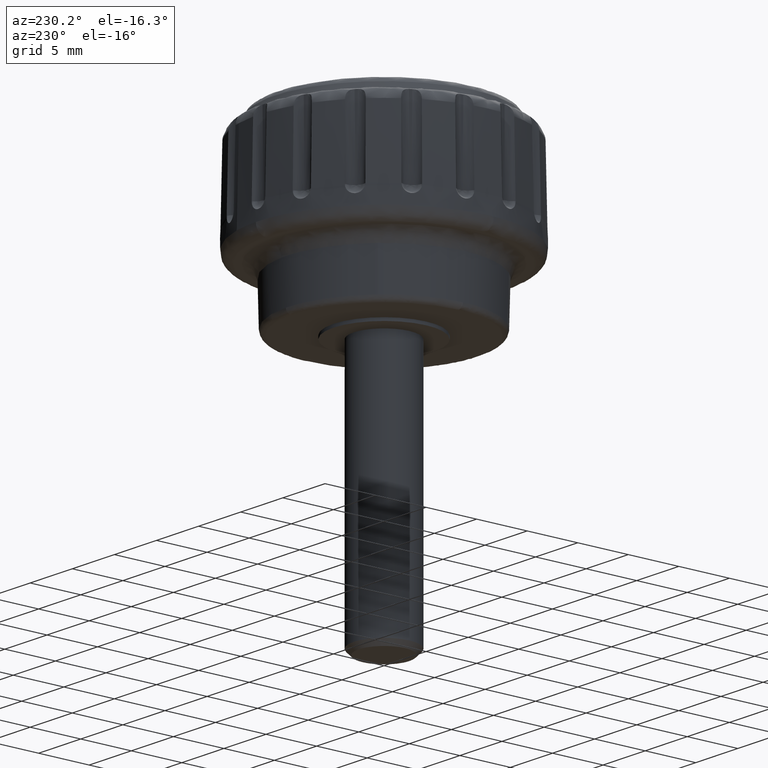
[diagram: clean part render]
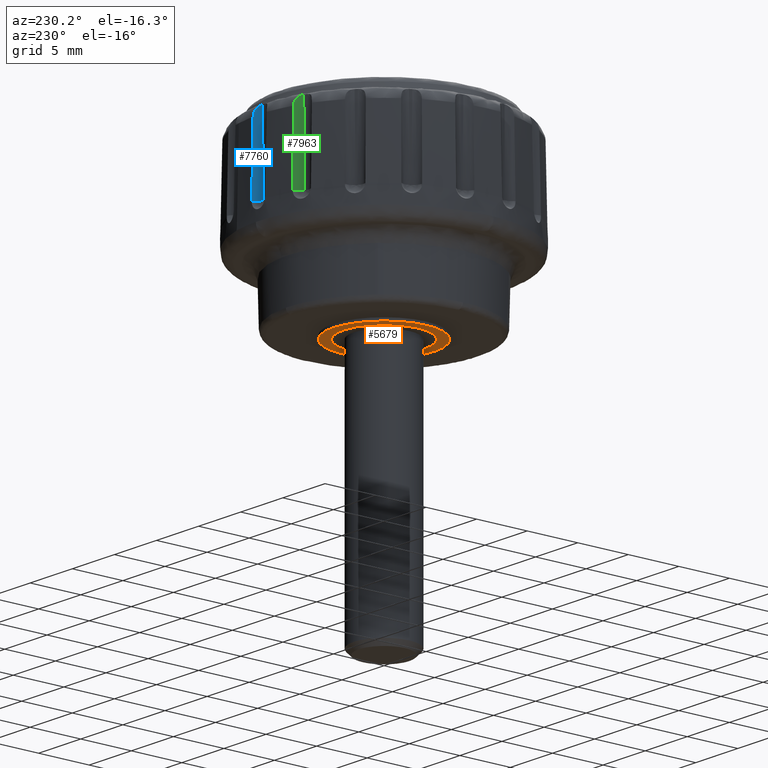
[diagram: same view with three faces highlighted in distinct colors, each labeled with its STEP entity id]
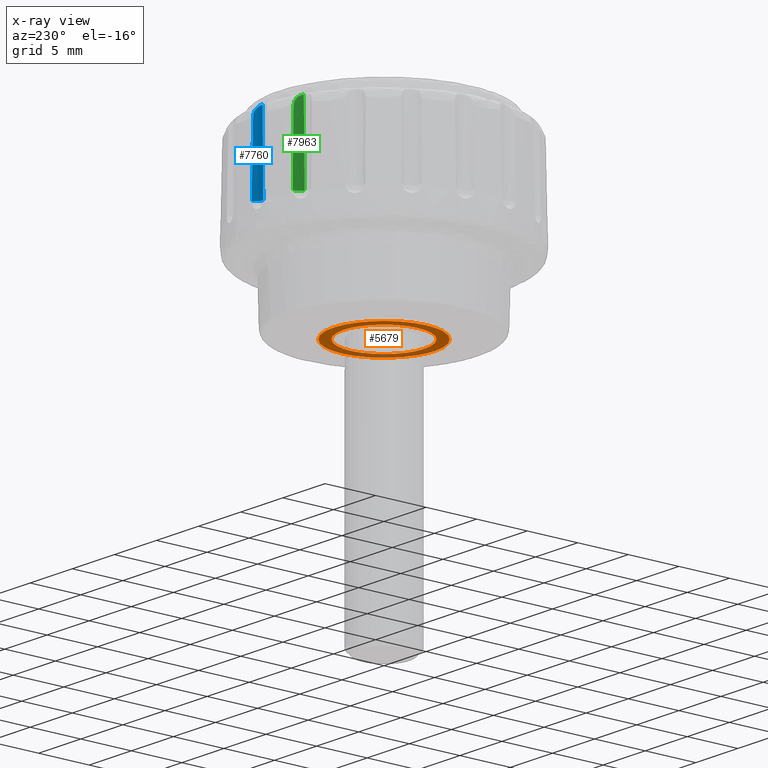
[diagram: x-ray of the same camera — body ghosted, the three highlighted faces saturated]
A machine part, auxiliary view with three faces highlighted in distinct colors.
The next image is the same camera in x-ray (body ghosted, the three faces saturated) — at least one of them is partly hidden behind the body in this view.
Their STEP definitions:

[orange] entity #5679 — the highlighted face is a freeform B-spline surface patch.
#773=CARTESIAN_POINT('',(2.582968277259651,3.054222686673260,1.419714E-017));
#774=VERTEX_POINT('',#773);
#780=CARTESIAN_POINT('',(4.0,0.0,0.0));
#781=VERTEX_POINT('',#780);
#782=CARTESIAN_POINT('',(2.582968277259651,3.054222686673260,1.419714E-017));
#783=CARTESIAN_POINT('',(2.783390729708871,2.884774332872317,1.340948E-017));
#784=CARTESIAN_POINT('',(3.099994334811781,2.558418817075851,1.189246E-017));
#785=CARTESIAN_POINT('',(3.479491614672023,2.004554865611670,9.317902E-018));
#786=CARTESIAN_POINT('',(3.731193763909722,1.480769749863850,6.883158E-018));
#787=CARTESIAN_POINT('',(3.941633084193859,0.805421673526824,3.743894E-018));
#788=CARTESIAN_POINT('',(4.000071593187973,0.316758942478009,1.472411E-018));
#789=CARTESIAN_POINT('',(4.0,0.0,0.0));
#790=B_SPLINE_CURVE_WITH_KNOTS('',3,(#782,#783,#784,#785,#786,#787,#788,#789),.UNSPECIFIED.,.F.,.U.,(4,1,1,1,1,4),(9.010364E-009,0.787352829345669,1.357509023448927,2.009103886044130,2.524959432130479,3.475213214580102),.UNSPECIFIED.);
#791=EDGE_CURVE('',#774,#781,#790,.T.);
#793=CARTESIAN_POINT('',(-0.000000679998158,-3.999999999999942,0.0));
#794=VERTEX_POINT('',#793);
#795=CARTESIAN_POINT('',(4.0,0.0,0.0));
#796=CARTESIAN_POINT('',(4.000134522528324,-0.359991037661738,0.0));
#797=CARTESIAN_POINT('',(3.933279082925195,-0.850794235132467,0.0));
#798=CARTESIAN_POINT('',(3.722551921038738,-1.488560877013301,0.0));
#799=CARTESIAN_POINT('',(3.494185485100092,-1.979216667947325,0.0));
#800=CARTESIAN_POINT('',(3.156598248613758,-2.484457838083012,0.0));
#801=CARTESIAN_POINT('',(2.754590853296578,-2.917183679142960,0.0));
#802=CARTESIAN_POINT('',(2.323740891626389,-3.270775001430089,0.0));
#803=CARTESIAN_POINT('',(1.820894925464643,-3.580640400324473,0.0));
#804=CARTESIAN_POINT('',(1.320188478140101,-3.788031428481791,0.0));
#805=CARTESIAN_POINT('',(0.703560905088214,-3.954606692610321,0.0));
#806=CARTESIAN_POINT('',(0.294528781102470,-4.000058164742479,0.0));
#807=CARTESIAN_POINT('',(-0.000000679998158,-3.999999999999942,0.0));
#808=B_SPLINE_CURVE_WITH_KNOTS('',3,(#795,#796,#797,#798,#799,#800,#801,#802,#803,#804,#805,#806,#807),.UNSPECIFIED.,.F.,.U.,(4,1,1,1,1,1,1,1,1,1,4),(7.866772E-009,1.079924879781738,1.472630004351729,2.012600383249791,2.699835945943578,3.288867183465816,3.779748287333567,4.368803776428929,5.056035109088246,5.399652359583630,6.283225114761176),.UNSPECIFIED.);
#809=EDGE_CURVE('',#781,#794,#808,.T.);
#811=CARTESIAN_POINT('',(-4.0,0.0,0.0));
#812=VERTEX_POINT('',#811);
#813=CARTESIAN_POINT('',(-0.000000679998158,-3.999999999999942,0.0));
#814=CARTESIAN_POINT('',(-0.196347172379414,-4.000001452462540,0.0));
#815=CARTESIAN_POINT('',(-0.687229420923167,-3.963824777952946,0.0));
#816=CARTESIAN_POINT('',(-1.467262980971816,-3.758283282391179,0.0));
#817=CARTESIAN_POINT('',(-2.181486672030715,-3.382104926165908,0.0));
#818=CARTESIAN_POINT('',(-2.732257714547681,-2.941223204485406,0.0));
#819=CARTESIAN_POINT('',(-3.156598305106874,-2.484454473597618,0.0));
#820=CARTESIAN_POINT('',(-3.466809462243532,-2.020181202659668,0.0));
#821=CARTESIAN_POINT('',(-3.711111756726393,-1.519615140229277,0.0));
#822=CARTESIAN_POINT('',(-3.929966888354716,-0.883526173425500,0.0));
#823=CARTESIAN_POINT('',(-4.000113739059817,-0.343624344631136,0.0));
#824=CARTESIAN_POINT('',(-4.0,0.0,0.0));
#825=B_SPLINE_CURVE_WITH_KNOTS('',3,(#813,#814,#815,#816,#817,#818,#819,#820,#821,#822,#823,#824),.UNSPECIFIED.,.F.,.U.,(4,1,1,1,1,1,1,1,1,4),(8.102653E-009,0.589048594108083,1.472629824898043,2.405297474261140,2.994358022042039,3.583389572379555,4.270625342967807,4.663330551732337,5.252384974597203,6.283224348239977),.UNSPECIFIED.);
#826=EDGE_CURVE('',#794,#812,#825,.T.);
#828=CARTESIAN_POINT('',(-2.901497342908391,2.753418204879737,5.828671E-016));
#829=VERTEX_POINT('',#828);
#830=CARTESIAN_POINT('',(-4.0,0.0,0.0));
#831=CARTESIAN_POINT('',(-4.000027204107603,0.268888737916587,5.692067E-017));
#832=CARTESIAN_POINT('',(-3.940809217232864,0.854123793103191,1.808082E-016));
#833=CARTESIAN_POINT('',(-3.705122333279410,1.564683932316091,3.312257E-016));
#834=CARTESIAN_POINT('',(-3.349177438496826,2.218837151845350,4.697024E-016));
#835=CARTESIAN_POINT('',(-3.086622767592415,2.558398637567795,5.415837E-016));
#836=CARTESIAN_POINT('',(-2.901497342908391,2.753418204879737,5.828671E-016));
#837=B_SPLINE_CURVE_WITH_KNOTS('',3,(#830,#831,#832,#833,#834,#835,#836),.UNSPECIFIED.,.F.,.U.,(4,1,1,1,4),(4.966496E-009,0.806674616060234,1.755696855169247,2.230216055049120,3.036890666136536),.UNSPECIFIED.);
#838=EDGE_CURVE('',#812,#829,#837,.T.);
#933=CARTESIAN_POINT('',(0.000000679998100,3.999999999999942,0.0));
#934=VERTEX_POINT('',#933);
#935=CARTESIAN_POINT('',(-2.901497342908391,2.753418204879737,5.828671E-016));
#936=CARTESIAN_POINT('',(-2.633910586593972,3.035621959927008,5.291130E-016));
#937=CARTESIAN_POINT('',(-2.109638003403320,3.447038695474149,4.237945E-016));
#938=CARTESIAN_POINT('',(-1.364236921564165,3.778477828234029,2.740547E-016));
#939=CARTESIAN_POINT('',(-0.693207450426515,3.956940239242774,1.392550E-016));
#940=CARTESIAN_POINT('',(-0.270529514455845,4.000042276784148,5.434543E-017));
#941=CARTESIAN_POINT('',(0.000000679998100,3.999999999999942,0.0));
#942=B_SPLINE_CURVE_WITH_KNOTS('',3,(#935,#936,#937,#938,#939,#940,#941),.UNSPECIFIED.,.F.,.U.,(4,1,1,1,4),(3.094430E-009,1.166654518162611,1.978232035870866,2.434751058514233,3.246334743390905),.UNSPECIFIED.);
#943=EDGE_CURVE('',#829,#934,#942,.T.);
#945=CARTESIAN_POINT('',(0.000000679998100,3.999999999999942,0.0));
#946=CARTESIAN_POINT('',(0.336383856765105,4.000090462627290,1.848912E-018));
#947=CARTESIAN_POINT('',(0.877454327103137,3.931325600871909,4.822876E-018));
#948=CARTESIAN_POINT('',(1.529857339520434,3.708508978252101,8.408774E-018));
#949=CARTESIAN_POINT('',(2.067774777102714,3.441538958272474,1.136541E-017));
#950=CARTESIAN_POINT('',(2.393146461177585,3.214792512317925,1.315380E-017));
#951=CARTESIAN_POINT('',(2.582968277259651,3.054222686673260,1.419714E-017));
#952=B_SPLINE_CURVE_WITH_KNOTS('',3,(#945,#946,#947,#948,#949,#950,#951),.UNSPECIFIED.,.F.,.U.,(4,1,1,1,4),(5.486857E-009,1.009125320555869,1.623366984815520,2.062118867608787,2.807992290856201),.UNSPECIFIED.);
#953=EDGE_CURVE('',#934,#774,#952,.T.);
#1754=CARTESIAN_POINT('',(3.626871746580310,-3.441772775521897,-4.770490E-017));
#1755=VERTEX_POINT('',#1754);
#1761=CARTESIAN_POINT('',(5.0,0.0,0.0));
#1762=VERTEX_POINT('',#1761);
#1763=CARTESIAN_POINT('',(5.0,0.0,0.0));
#1764=CARTESIAN_POINT('',(5.000050501878227,-0.336116466605772,-4.658762E-018));
#1765=CARTESIAN_POINT('',(4.941954089192699,-0.909463459414174,-1.260567E-017));
#1766=CARTESIAN_POINT('',(4.733635112887720,-1.653901941810429,-2.292401E-017));
#1767=CARTESIAN_POINT('',(4.453792906141968,-2.309715544774081,-3.201395E-017));
#1768=CARTESIAN_POINT('',(4.093401905128494,-2.903249659808498,-4.024066E-017));
#1769=CARTESIAN_POINT('',(3.776581342135038,-3.284018968280497,-4.551834E-017));
#1770=CARTESIAN_POINT('',(3.626871746580310,-3.441772775521897,-4.770490E-017));
#1771=B_SPLINE_CURVE_WITH_KNOTS('',3,(#1763,#1764,#1765,#1766,#1767,#1768,#1769,#1770),.UNSPECIFIED.,.F.,.U.,(4,1,1,1,1,4),(1.769189E-009,1.008342609191173,1.720114205888494,2.313256215210973,3.143656487049242,3.796113323772782),.UNSPECIFIED.);
#1772=EDGE_CURVE('',#1762,#1755,#1771,.T.);
#1774=CARTESIAN_POINT('',(0.000000599034348,4.999999999999965,0.0));
#1775=VERTEX_POINT('',#1774);
#1776=CARTESIAN_POINT('',(0.000000599034348,4.999999999999965,0.0));
#1777=CARTESIAN_POINT('',(0.357933616104426,5.000060118899714,0.0));
#1778=CARTESIAN_POINT('',(0.951046597887481,4.936028082981140,0.0));
#1779=CARTESIAN_POINT('',(1.698695233837761,4.716699810084221,0.0));
#1780=CARTESIAN_POINT('',(2.318358195801800,4.446564962325157,0.0));
#1781=CARTESIAN_POINT('',(2.941833340380854,4.070292030761775,0.0));
#1782=CARTESIAN_POINT('',(3.488742831429088,3.604323493252253,0.0));
#1783=CARTESIAN_POINT('',(3.978848434695347,3.053479504462322,0.0));
#1784=CARTESIAN_POINT('',(4.339663741693673,2.517049276136158,0.0));
#1785=CARTESIAN_POINT('',(4.674539691422725,1.825565052465497,0.0));
#1786=CARTESIAN_POINT('',(4.929414415760291,1.012404279034509,0.0));
#1787=CARTESIAN_POINT('',(5.000060743668165,0.357932501627800,0.0));
#1788=CARTESIAN_POINT('',(5.0,0.0,0.0));
#1789=B_SPLINE_CURVE_WITH_KNOTS('',3,(#1776,#1777,#1778,#1779,#1780,#1781,#1782,#1783,#1784,#1785,#1786,#1787,#1788),.UNSPECIFIED.,.F.,.U.,(4,1,1,1,1,1,1,1,1,1,4),(0.000000026688253,1.073785785966996,1.779419607358167,2.331655071204996,3.098650277464014,3.957660029181113,4.479218508483781,5.307577037523638,5.890495218682290,6.780210582299306,7.853993616966953),.UNSPECIFIED.);
#1790=EDGE_CURVE('',#1775,#1762,#1789,.T.);
#1792=CARTESIAN_POINT('',(-5.0,0.0,0.0));
#1793=VERTEX_POINT('',#1792);
#1794=CARTESIAN_POINT('',(-5.0,0.0,0.0));
#1795=CARTESIAN_POINT('',(-5.000100231271516,0.398842465195034,0.0));
#1796=CARTESIAN_POINT('',(-4.916330945191805,1.094202930271203,0.0));
#1797=CARTESIAN_POINT('',(-4.634950910936357,1.920297064769165,0.0));
#1798=CARTESIAN_POINT('',(-4.306045600345787,2.568733771881766,0.0));
#1799=CARTESIAN_POINT('',(-3.971008113844284,3.060299229375719,0.0));
#1800=CARTESIAN_POINT('',(-3.523365090268375,3.566536108629140,0.0));
#1801=CARTESIAN_POINT('',(-2.984075074527847,4.040488785777233,0.0));
#1802=CARTESIAN_POINT('',(-2.277401400887092,4.478935329388031,0.0));
#1803=CARTESIAN_POINT('',(-1.573186509137595,4.763038204966443,0.0));
#1804=CARTESIAN_POINT('',(-0.818106295358557,4.952170153458454,0.0));
#1805=CARTESIAN_POINT('',(-0.317024084356063,5.000041255077769,0.0));
#1806=CARTESIAN_POINT('',(0.000000599034348,4.999999999999965,0.0));
#1807=B_SPLINE_CURVE_WITH_KNOTS('',3,(#1794,#1795,#1796,#1797,#1798,#1799,#1800,#1801,#1802,#1803,#1804,#1805,#1806),.UNSPECIFIED.,.F.,.U.,(4,1,1,1,1,1,1,1,1,1,4),(0.000000026639937,1.196503717085729,2.086217465142714,2.607776903351938,3.374775518609680,3.865641439352543,4.632628442492885,5.522338321696408,6.350694559411954,6.902929232274560,7.853994292219328),.UNSPECIFIED.);
#1808=EDGE_CURVE('',#1793,#1775,#1807,.T.);
#1810=CARTESIAN_POINT('',(-3.228710282003084,-3.817778331921210,-3.016892E-017));
#1811=VERTEX_POINT('',#1810);
#1812=CARTESIAN_POINT('',(-3.228710282003084,-3.817778331921210,-3.016892E-017));
#1813=CARTESIAN_POINT('',(-3.487875086621408,-3.598661010389491,-2.843741E-017));
#1814=CARTESIAN_POINT('',(-3.850817943079441,-3.221996685965381,-2.546093E-017));
#1815=CARTESIAN_POINT('',(-4.279680637041627,-2.609482934388073,-2.062071E-017));
#1816=CARTESIAN_POINT('',(-4.636416288865320,-1.938752579579847,-1.532045E-017));
#1817=CARTESIAN_POINT('',(-4.925902351794397,-1.052048912451596,-8.313522E-018));
#1818=CARTESIAN_POINT('',(-5.000058587354344,-0.350692530942006,-2.771250E-018));
#1819=CARTESIAN_POINT('',(-5.0,0.0,0.0));
#1820=B_SPLINE_CURVE_WITH_KNOTS('',3,(#1812,#1813,#1814,#1815,#1816,#1817,#1818,#1819),.UNSPECIFIED.,.F.,.U.,(4,1,1,1,1,4),(8.790930E-009,1.018128545418596,1.561135051953893,2.239878803243487,3.291950149347940,4.344016523591941),.UNSPECIFIED.);
#1821=EDGE_CURVE('',#1811,#1793,#1820,.T.);
#1858=CARTESIAN_POINT('',(-0.000000599034464,-4.999999999999965,0.0));
#1859=VERTEX_POINT('',#1858);
#1860=CARTESIAN_POINT('',(-0.000000599034464,-4.999999999999965,0.0));
#1861=CARTESIAN_POINT('',(-0.237655124339219,-5.000009584581895,-2.220634E-018));
#1862=CARTESIAN_POINT('',(-0.731244484363819,-4.964747741952481,-6.832711E-018));
#1863=CARTESIAN_POINT('',(-1.429168163173637,-4.809135219069916,-1.335408E-017));
#1864=CARTESIAN_POINT('',(-2.303016913953041,-4.478312403649905,-2.151929E-017));
#1865=CARTESIAN_POINT('',(-2.879828865944173,-4.113035741219294,-2.690899E-017));
#1866=CARTESIAN_POINT('',(-3.228710282003084,-3.817778331921210,-3.016892E-017));
#1867=B_SPLINE_CURVE_WITH_KNOTS('',3,(#1860,#1861,#1862,#1863,#1864,#1865,#1866),.UNSPECIFIED.,.F.,.U.,(4,1,1,1,4),(3.036485E-009,0.712966008545636,1.480781654037774,2.138896337693041,3.509990560577175),.UNSPECIFIED.);
#1868=EDGE_CURVE('',#1859,#1811,#1867,.T.);
#1870=CARTESIAN_POINT('',(3.626871746580310,-3.441772775521897,-4.770490E-017));
#1871=CARTESIAN_POINT('',(3.343253345253232,-3.740806806772956,-4.397441E-017));
#1872=CARTESIAN_POINT('',(2.750840413624729,-4.227463248078142,-3.618230E-017));
#1873=CARTESIAN_POINT('',(1.855735613630587,-4.670585781485934,-2.440883E-017));
#1874=CARTESIAN_POINT('',(0.951043141470591,-4.935915016060008,-1.250925E-017));
#1875=CARTESIAN_POINT('',(0.359298332916841,-5.000067257361243,-4.725923E-018));
#1876=CARTESIAN_POINT('',(-0.000000599034464,-4.999999999999965,0.0));
#1877=B_SPLINE_CURVE_WITH_KNOTS('',3,(#1870,#1871,#1872,#1873,#1874,#1875,#1876),.UNSPECIFIED.,.F.,.U.,(4,1,1,1,4),(7.544592E-009,1.236392350986767,2.282562276801998,2.980018569408485,4.057897846333485),.UNSPECIFIED.);
#1878=EDGE_CURVE('',#1755,#1859,#1877,.T.);
#5658=CARTESIAN_POINT('',(5.499499980618060,-5.499499980618021,0.0));
#5659=CARTESIAN_POINT('',(-5.499500248838961,-5.499499980618021,0.0));
#5660=CARTESIAN_POINT('',(5.499499980618060,5.499500248838922,0.0));
#5661=CARTESIAN_POINT('',(-5.499500248838961,5.499500248838922,0.0));
#5662=B_SPLINE_SURFACE_WITH_KNOTS('',1,1,((#5658,#5660),(#5659,#5661)),.UNSPECIFIED.,.F.,.F.,.U.,(2,2),(2,2),(0.0,10.999000229457019),(0.0,10.999000229456939),.UNSPECIFIED.);
#5663=ORIENTED_EDGE('',*,*,#1808,.T.);
#5664=ORIENTED_EDGE('',*,*,#1790,.T.);
#5665=ORIENTED_EDGE('',*,*,#1772,.T.);
#5666=ORIENTED_EDGE('',*,*,#1878,.T.);
#5667=ORIENTED_EDGE('',*,*,#1868,.T.);
#5668=ORIENTED_EDGE('',*,*,#1821,.T.);
#5669=EDGE_LOOP('',(#5663,#5664,#5665,#5666,#5667,#5668));
#5670=FACE_OUTER_BOUND('',#5669,.T.);
#5671=ORIENTED_EDGE('',*,*,#809,.F.);
#5672=ORIENTED_EDGE('',*,*,#791,.F.);
#5673=ORIENTED_EDGE('',*,*,#953,.F.);
#5674=ORIENTED_EDGE('',*,*,#943,.F.);
#5675=ORIENTED_EDGE('',*,*,#838,.F.);
#5676=ORIENTED_EDGE('',*,*,#826,.F.);
#5677=EDGE_LOOP('',(#5671,#5672,#5673,#5674,#5675,#5676));
#5678=FACE_BOUND('',#5677,.T.);
#5679=ADVANCED_FACE('',(#5670,#5678),#5662,.T.);

[blue] entity #7760 — the highlighted face is a freeform B-spline surface patch.
#3319=CARTESIAN_POINT('',(0.799999000000000,12.417559627659299,8.800002999999810));
#3320=VERTEX_POINT('',#3319);
#3368=CARTESIAN_POINT('',(0.799999000000000,12.281119434003520,15.524289876473100));
#3369=VERTEX_POINT('',#3368);
#3370=CARTESIAN_POINT('',(0.799999000000000,12.281119434003520,15.524289876473100));
#3371=CARTESIAN_POINT('',(0.799999000000000,12.417559627659299,8.800002999999810));
#3372=QUASI_UNIFORM_CURVE('',1,(#3370,#3371),.UNSPECIFIED.,.F.,.U.);
#3373=EDGE_CURVE('',#3369,#3320,#3372,.T.);
#4390=CARTESIAN_POINT('',(0.129617301758455,11.899997000000001,16.400364117337599));
#4391=VERTEX_POINT('',#4390);
#4392=CARTESIAN_POINT('',(0.799999000000000,12.281119434003520,15.524289876473100));
#4393=CARTESIAN_POINT('',(0.799999000000001,12.279990878392960,15.579908058427160));
#4394=CARTESIAN_POINT('',(0.797757514798029,12.275166004576400,15.634737434845441));
#4395=CARTESIAN_POINT('',(0.788394876527595,12.258512889574281,15.742842968018390));
#4396=CARTESIAN_POINT('',(0.781283794946751,12.246681006186980,15.796119486342191));
#4397=CARTESIAN_POINT('',(0.760514697433294,12.216097474236040,15.900977825317220));
#4398=CARTESIAN_POINT('',(0.747053585658707,12.197657568337000,15.951387691156610));
#4399=CARTESIAN_POINT('',(0.720916244442739,12.166359417016560,16.023099733338789));
#4400=CARTESIAN_POINT('',(0.711196489658796,12.155309048095679,16.046389131582210));
#4401=CARTESIAN_POINT('',(0.689361064292912,12.132137518367969,16.091673406006340));
#4402=CARTESIAN_POINT('',(0.677167412311459,12.119949515070321,16.113768571365650));
#4403=CARTESIAN_POINT('',(0.637219653079478,12.082954364058869,16.176549535844408));
#4404=CARTESIAN_POINT('',(0.606005064819832,12.057521667083019,16.214152117714971));
#4405=CARTESIAN_POINT('',(0.550468808686393,12.020359777767730,16.264071124665929));
#4406=CARTESIAN_POINT('',(0.530542043893356,12.008200239716100,16.279537166770460));
#4407=CARTESIAN_POINT('',(0.488820384192681,11.985372902248431,16.307420857541530));
#4408=CARTESIAN_POINT('',(0.466890059904098,11.974609146239279,16.319969034108759));
#4409=CARTESIAN_POINT('',(0.420806942728114,11.954735825384409,16.342427248912951));
#4410=CARTESIAN_POINT('',(0.396655546182098,11.945624658767970,16.352338466752379));
#4411=CARTESIAN_POINT('',(0.345967016660234,11.929452868899331,16.369562468626739));
#4412=CARTESIAN_POINT('',(0.320057469975704,11.922597071047671,16.376661733452089));
#4413=CARTESIAN_POINT('',(0.267280041743118,11.911492921654929,16.388091417198961));
#4414=CARTESIAN_POINT('',(0.240390253891018,11.907236479000980,16.392429307540919));
#4415=CARTESIAN_POINT('',(0.185594036499812,11.901482580810450,16.398436418129702));
#4416=CARTESIAN_POINT('',(0.157591693921550,11.899997000000001,16.400095660952161));
#4417=CARTESIAN_POINT('',(0.129617301758456,11.899997000000001,16.400364117337599));
#4418=B_SPLINE_CURVE_WITH_KNOTS('',3,(#4392,#4393,#4394,#4395,#4396,#4397,#4398,#4399,#4400,#4401,#4402,#4403,#4404,#4405,#4406,#4407,#4408,#4409,#4410,#4411,#4412,#4413,#4414,#4415,#4416,#4417),.UNSPECIFIED.,.F.,.U.,(4,2,2,2,2,2,2,2,2,2,2,2,4),(0.0,0.124999999999999,0.249999999999998,0.374999999999997,0.437499999999996,0.499999999999996,0.625000000000000,0.687500000000000,0.750000000000000,0.812500000000000,0.875000000000000,0.937500000000000,1.0),.UNSPECIFIED.);
#4419=EDGE_CURVE('',#3369,#4391,#4418,.T.);
#7716=CARTESIAN_POINT('',(0.799998999999993,12.417559627659299,8.800002999999810));
#7717=CARTESIAN_POINT('',(0.799998999999803,12.365905683465520,11.345762461222920));
#7718=CARTESIAN_POINT('',(0.799999000004737,12.314251028415519,13.891491308538161));
#7719=CARTESIAN_POINT('',(0.799998999999993,12.262597233024801,16.437109632271401));
#7720=CARTESIAN_POINT('',(0.604704731376314,11.899996999999999,8.801498297712280));
#7721=CARTESIAN_POINT('',(0.583395602593374,11.899997000008835,11.347732852043119));
#7722=CARTESIAN_POINT('',(0.569391062738517,11.899997000000004,13.894019234961746));
#7723=CARTESIAN_POINT('',(0.563243844350607,11.899997000000001,16.440246932016180));
#7724=CARTESIAN_POINT('',(0.051536382569849,11.899997000000001,8.805733708062061));
#7725=CARTESIAN_POINT('',(0.071036365925236,11.899997000000001,11.352540915044701));
#7726=CARTESIAN_POINT('',(0.096474446843671,11.899997000000001,13.899319713552041));
#7727=CARTESIAN_POINT('',(0.130220923855431,11.899997000000001,16.445985023312339));
#7735=(BOUNDED_SURFACE()B_SPLINE_SURFACE(3,2,((#7716,#7720,#7724),(#7717,#7721,#7725),(#7718,#7722,#7726),(#7719,#7723,#7727)),.UNSPECIFIED.,.F.,.F.,.U.)B_SPLINE_SURFACE_WITH_KNOTS((4,4),(3,3),(0.0,7.721161830624086),(0.0,1.0),.UNSPECIFIED.)GEOMETRIC_REPRESENTATION_ITEM()RATIONAL_B_SPLINE_SURFACE(((1.0,0.822510399759748,1.0),(1.0,0.842134724229717,1.0),(1.0,0.861061486920432,1.0),(1.0,0.879417337991183,1.0)))REPRESENTATION_ITEM('')SURFACE());
#7736=CARTESIAN_POINT('',(0.051536382569940,11.899997000000001,8.805733708062061));
#7737=VERTEX_POINT('',#7736);
#7738=CARTESIAN_POINT('',(0.799999000000000,12.417559627659299,8.800002999999810));
#7739=CARTESIAN_POINT('',(0.776874117975179,12.356234863764399,8.800180058873261));
#7740=CARTESIAN_POINT('',(0.715438365814419,12.239320201953049,8.800650450248897));
#7741=CARTESIAN_POINT('',(0.596946597351535,12.106778673752499,8.801557698943782));
#7742=CARTESIAN_POINT('',(0.462352849297773,12.007964476565199,8.802588234683535));
#7743=CARTESIAN_POINT('',(0.288448893796780,11.925142053492500,8.803919754490366));
#7744=CARTESIAN_POINT('',(0.142288929626258,11.899944737097551,8.805038848571444));
#7745=CARTESIAN_POINT('',(0.051536382569940,11.899997000000001,8.805733708062061));
#7746=B_SPLINE_CURVE_WITH_KNOTS('',3,(#7738,#7739,#7740,#7741,#7742,#7743,#7744,#7745),.UNSPECIFIED.,.F.,.U.,(4,1,1,1,1,4),(0.000000042193863,0.196620963096147,0.393246828056065,0.529369724709041,0.695742718985850,0.967991058826955),.UNSPECIFIED.);
#7747=EDGE_CURVE('',#3320,#7737,#7746,.T.);
#7748=ORIENTED_EDGE('',*,*,#7747,.T.);
#7749=CARTESIAN_POINT('',(0.129617301758456,11.899997000000001,16.400364117337599));
#7750=CARTESIAN_POINT('',(0.096173421383331,11.899997000000001,13.868903467068341));
#7751=CARTESIAN_POINT('',(0.070919983910527,11.899997000000001,11.337340769060649));
#7752=CARTESIAN_POINT('',(0.051536382569940,11.899997000000001,8.805733708062061));
#7753=QUASI_UNIFORM_CURVE('',3,(#7749,#7750,#7751,#7752),.UNSPECIFIED.,.F.,.U.);
#7754=EDGE_CURVE('',#4391,#7737,#7753,.T.);
#7755=ORIENTED_EDGE('',*,*,#7754,.F.);
#7756=ORIENTED_EDGE('',*,*,#4419,.F.);
#7757=ORIENTED_EDGE('',*,*,#3373,.T.);
#7758=EDGE_LOOP('',(#7748,#7755,#7756,#7757));
#7759=FACE_OUTER_BOUND('',#7758,.T.);
#7760=ADVANCED_FACE('',(#7759),#7735,.F.);

[green] entity #7963 — the highlighted face is a freeform B-spline surface patch.
#3247=CARTESIAN_POINT('',(-3.495302366670960,11.942304922920821,8.800002999999810));
#3248=VERTEX_POINT('',#3247);
#3296=CARTESIAN_POINT('',(-3.448637072081465,11.814093079763900,15.524289876473100));
#3297=VERTEX_POINT('',#3296);
#3298=CARTESIAN_POINT('',(-3.448637072081465,11.814093079763900,15.524289876473100));
#3299=CARTESIAN_POINT('',(-3.495302366670960,11.942304922920821,8.800002999999810));
#3300=QUASI_UNIFORM_CURVE('',1,(#3298,#3299),.UNSPECIFIED.,.F.,.U.);
#3301=EDGE_CURVE('',#3297,#3248,#3300,.T.);
#4460=CARTESIAN_POINT('',(-3.948238257526419,11.226671096399340,16.400364117337599));
#4461=VERTEX_POINT('',#4460);
#4462=CARTESIAN_POINT('',(-3.448637072081465,11.814093079763900,15.524289876473100));
#4463=CARTESIAN_POINT('',(-3.448251083329791,11.813032584384510,15.579908058427151));
#4464=CARTESIAN_POINT('',(-3.448707186398999,11.807732052972950,15.634737434845450));
#4465=CARTESIAN_POINT('',(-3.451809487712974,11.788881032809210,15.742842968018390));
#4466=CARTESIAN_POINT('',(-3.454444976148310,11.775330566158690,15.796119486342191));
#4467=CARTESIAN_POINT('',(-3.463501359840822,11.739487997158520,15.900977825317231));
#4468=CARTESIAN_POINT('',(-3.469843847984480,11.717556182278710,15.951387691156659));
#4469=CARTESIAN_POINT('',(-3.483700316451648,11.679206043249820,16.023099733338832));
#4470=CARTESIAN_POINT('',(-3.489054449535846,11.665497741193599,16.046389131582242));
#4471=CARTESIAN_POINT('',(-3.501647907705347,11.636255470382940,16.091673406006372));
#4472=CARTESIAN_POINT('',(-3.508937649858062,11.620632019023610,16.113768571365760));
#4473=CARTESIAN_POINT('',(-3.533823177573999,11.572205010275230,16.176549535844501));
#4474=CARTESIAN_POINT('',(-3.554456801157627,11.537630074649920,16.214152117715049));
#4475=CARTESIAN_POINT('',(-3.593933696522443,11.483714803203350,16.264071124665989));
#4476=CARTESIAN_POINT('',(-3.608499923407473,11.465473220073470,16.279537166770599));
#4477=CARTESIAN_POINT('',(-3.639898049922716,11.429752891472299,16.307420857541640));
#4478=CARTESIAN_POINT('',(-3.656824392455175,11.412137656722210,16.319969034108880));
#4479=CARTESIAN_POINT('',(-3.693331281561142,11.377701489422959,16.342427248913051));
#4480=CARTESIAN_POINT('',(-3.712909968165103,11.360879529278559,16.352338466752471));
#4481=CARTESIAN_POINT('',(-3.755010527426611,11.328346519542050,16.369562468626821));
#4482=CARTESIAN_POINT('',(-3.777012716290196,11.313042590020670,16.376661733452170));
#4483=CARTESIAN_POINT('',(-3.822809433377633,11.284557159207750,16.388091417199039));
#4484=CARTESIAN_POINT('',(-3.846621779470203,11.271360562359860,16.392429307540979));
#4485=CARTESIAN_POINT('',(-3.896145431515940,11.247212256563641,16.398436418129741));
#4486=CARTESIAN_POINT('',(-3.921950927639768,11.236238902016400,16.400095660952179));
#4487=CARTESIAN_POINT('',(-3.948238257526419,11.226671096399340,16.400364117337599));
#4488=B_SPLINE_CURVE_WITH_KNOTS('',3,(#4462,#4463,#4464,#4465,#4466,#4467,#4468,#4469,#4470,#4471,#4472,#4473,#4474,#4475,#4476,#4477,#4478,#4479,#4480,#4481,#4482,#4483,#4484,#4485,#4486,#4487),.UNSPECIFIED.,.F.,.U.,(4,2,2,2,2,2,2,2,2,2,2,2,4),(0.0,0.125000000000006,0.250000000000011,0.375000000000016,0.437500000000018,0.500000000000020,0.625000000000018,0.687500000000015,0.750000000000012,0.812500000000009,0.875000000000006,0.937500000000003,1.0),.UNSPECIFIED.);
#4489=EDGE_CURVE('',#3297,#4461,#4488,.T.);
#7920=CARTESIAN_POINT('',(-3.495302366670535,11.942304922920989,8.800002999999800));
#7921=CARTESIAN_POINT('',(-3.477635678723098,11.893766096662230,11.345762252513641));
#7922=CARTESIAN_POINT('',(-3.459968710948639,11.845226501888339,13.891496173127891));
#7923=CARTESIAN_POINT('',(-3.442302106997170,11.796687906243120,16.437109524258879));
#7924=CARTESIAN_POINT('',(-3.501802105685949,11.389160567169634,8.801498297712271));
#7925=CARTESIAN_POINT('',(-3.521826135151259,11.381872416468637,11.347732643411682));
#7926=CARTESIAN_POINT('',(-3.534986110015086,11.377082577331320,13.894024100570856));
#7927=CARTESIAN_POINT('',(-3.540762595030187,11.374980108735882,16.440246823976160));
#7928=CARTESIAN_POINT('',(-4.021610321111706,11.199965849227629,8.805733708062054));
#7929=CARTESIAN_POINT('',(-4.003286332152790,11.206635235781681,11.352540706305531));
#7930=CARTESIAN_POINT('',(-3.979382292625018,11.215335594648550,13.899324579950020));
#7931=CARTESIAN_POINT('',(-3.947671039641305,11.226877546825881,16.445984915250790));
#7939=(BOUNDED_SURFACE()B_SPLINE_SURFACE(3,2,((#7920,#7924,#7928),(#7921,#7925,#7929),(#7922,#7926,#7930),(#7923,#7927,#7931)),.UNSPECIFIED.,.F.,.F.,.U.)B_SPLINE_SURFACE_WITH_KNOTS((4,4),(3,3),(0.0,7.721161193756919),(0.0,1.0),.UNSPECIFIED.)GEOMETRIC_REPRESENTATION_ITEM()RATIONAL_B_SPLINE_SURFACE(((1.0,0.822510399759749,1.0),(1.0,0.842134723258479,1.0),(1.0,0.861061522385584,1.0),(1.0,0.879417337212379,1.0)))REPRESENTATION_ITEM('')SURFACE());
#7940=CARTESIAN_POINT('',(-4.021610321112080,11.199965849227500,8.805733708062050));
#7941=VERTEX_POINT('',#7940);
#7942=CARTESIAN_POINT('',(-3.495302366670960,11.942304922920821,8.800002999999810));
#7943=CARTESIAN_POINT('',(-3.496059717521933,11.876769762793071,8.800180067600605));
#7944=CARTESIAN_POINT('',(-3.514486566602662,11.740860962569361,8.800668554441600));
#7945=CARTESIAN_POINT('',(-3.601413447269605,11.529137260610520,8.801848429641320));
#7946=CARTESIAN_POINT('',(-3.767954601588597,11.328373051008400,8.803572420662363));
#7947=CARTESIAN_POINT('',(-3.931564491693543,11.232657973415790,8.805000226804667));
#7948=CARTESIAN_POINT('',(-4.021610321112080,11.199965849227500,8.805733708062050));
#7949=B_SPLINE_CURVE_WITH_KNOTS('',3,(#7942,#7943,#7944,#7945,#7946,#7947,#7948),.UNSPECIFIED.,.F.,.U.,(4,1,1,1,4),(0.000000042192975,0.196620963095513,0.408378718877369,0.680616301311921,0.967991058826978),.UNSPECIFIED.);
#7950=EDGE_CURVE('',#3248,#7941,#7949,.T.);
#7951=ORIENTED_EDGE('',*,*,#7950,.T.);
#7952=CARTESIAN_POINT('',(-3.948238257526419,11.226671096399340,16.400364117337599));
#7953=CARTESIAN_POINT('',(-3.979665225125388,11.215232615640071,13.868903467068330));
#7954=CARTESIAN_POINT('',(-4.003395693968051,11.206595431336170,11.337340769060660));
#7955=CARTESIAN_POINT('',(-4.021610321112080,11.199965849227500,8.805733708062050));
#7956=QUASI_UNIFORM_CURVE('',3,(#7952,#7953,#7954,#7955),.UNSPECIFIED.,.F.,.U.);
#7957=EDGE_CURVE('',#4461,#7941,#7956,.T.);
#7958=ORIENTED_EDGE('',*,*,#7957,.F.);
#7959=ORIENTED_EDGE('',*,*,#4489,.F.);
#7960=ORIENTED_EDGE('',*,*,#3301,.T.);
#7961=EDGE_LOOP('',(#7951,#7958,#7959,#7960));
#7962=FACE_OUTER_BOUND('',#7961,.T.);
#7963=ADVANCED_FACE('',(#7962),#7939,.F.);